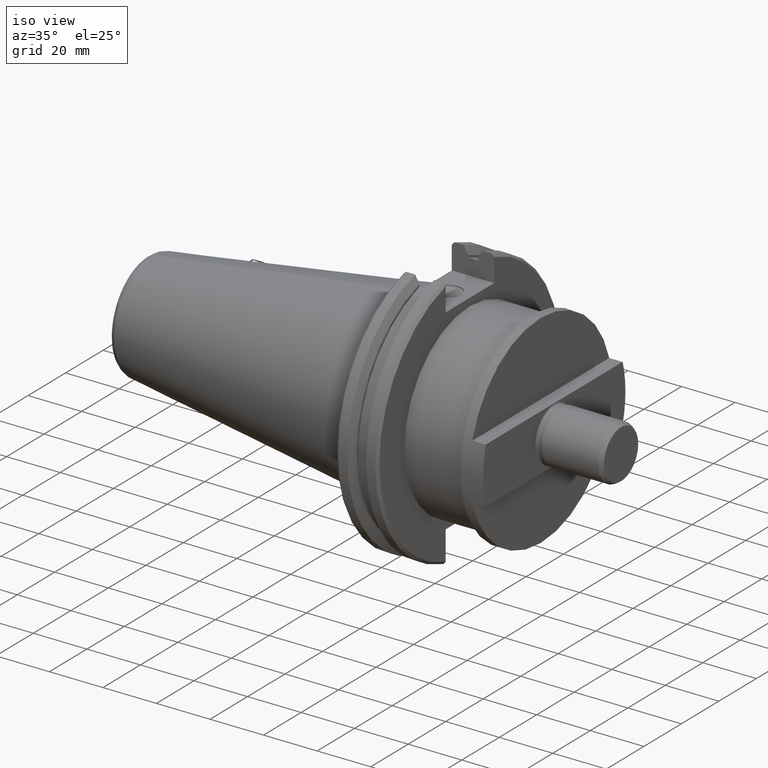
[diagram: clean part render]
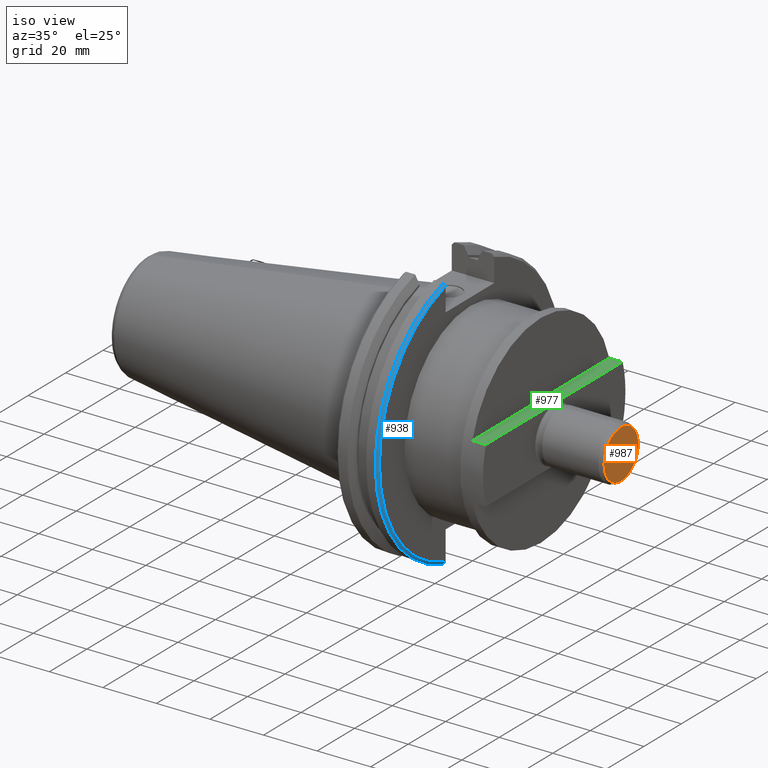
[diagram: same view with three faces highlighted in distinct colors, each labeled with its STEP entity id]
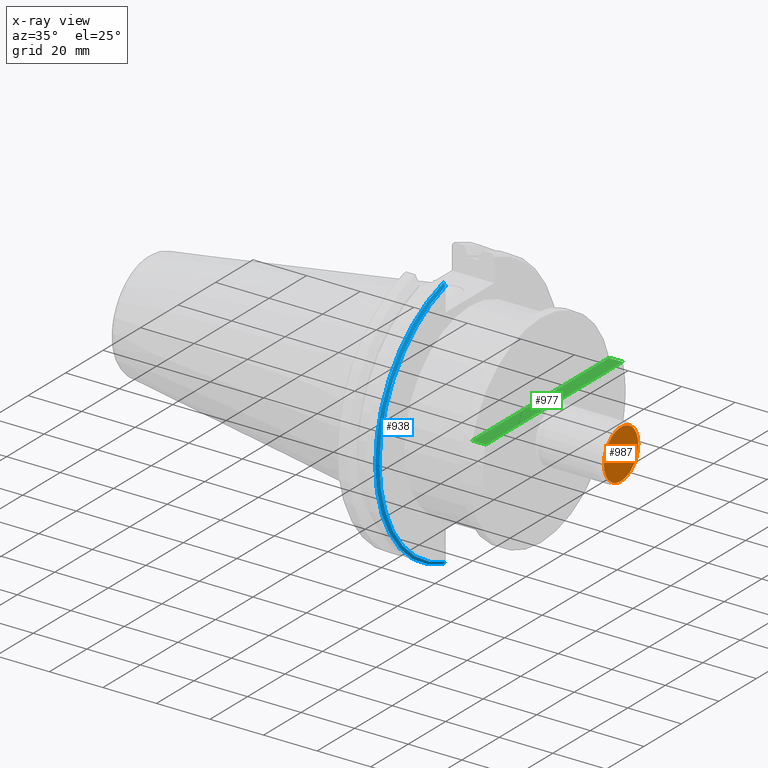
[diagram: x-ray of the same camera — body ghosted, the three highlighted faces saturated]
A machine part, iso view with three faces highlighted in distinct colors.
The next image is the same camera in x-ray (body ghosted, the three faces saturated) — at least one of them is partly hidden behind the body in this view.
Their STEP definitions:

[orange] entity #987 — the highlighted planar face has unit normal (1, 0, 0).
#115=FACE_OUTER_BOUND('',#180,.T.);
#180=EDGE_LOOP('',(#906));
#253=CIRCLE('',#1137,9.133974596216);
#477=VERTEX_POINT('',#1785);
#620=EDGE_CURVE('',#477,#477,#253,.T.);
#906=ORIENTED_EDGE('',*,*,#620,.T.);
#929=PLANE('',#1138);
#987=ADVANCED_FACE('',(#115),#929,.T.);
#1137=AXIS2_PLACEMENT_3D('',#1787,#1460,#1461);
#1138=AXIS2_PLACEMENT_3D('',#1788,#1462,#1463);
#1460=DIRECTION('center_axis',(1.,0.,0.));
#1461=DIRECTION('ref_axis',(0.,0.,-1.));
#1462=DIRECTION('center_axis',(1.,0.,0.));
#1463=DIRECTION('ref_axis',(0.,0.,-1.));
#1785=CARTESIAN_POINT('',(75.4999999999999,9.13397459621582,-1.1185892752749E-15));
#1787=CARTESIAN_POINT('Origin',(75.5,-1.084307601755E-14,0.));
#1788=CARTESIAN_POINT('Origin',(75.5,17.,0.));

[blue] entity #938 — the highlighted conical surface has half-angle 45 deg.
#45=CONICAL_SURFACE('',#1027,48.75625,0.785398163397448);
#66=FACE_OUTER_BOUND('',#124,.T.);
#124=EDGE_LOOP('',(#669,#670,#671,#672));
#181=CIRCLE('',#1009,1853.38669788736);
#186=CIRCLE('',#1016,1853.38669592496);
#191=CIRCLE('',#1026,49.2125);
#192=CIRCLE('',#1028,48.3);
#390=VERTEX_POINT('',#1481);
#391=VERTEX_POINT('',#1483);
#402=VERTEX_POINT('',#1511);
#403=VERTEX_POINT('',#1513);
#484=EDGE_CURVE('',#391,#390,#181,.T.);
#498=EDGE_CURVE('',#403,#402,#186,.T.);
#508=EDGE_CURVE('',#390,#403,#191,.T.);
#509=EDGE_CURVE('',#391,#402,#192,.T.);
#669=ORIENTED_EDGE('',*,*,#509,.F.);
#670=ORIENTED_EDGE('',*,*,#484,.T.);
#671=ORIENTED_EDGE('',*,*,#508,.T.);
#672=ORIENTED_EDGE('',*,*,#498,.T.);
#938=ADVANCED_FACE('',(#66),#45,.T.);
#1009=AXIS2_PLACEMENT_3D('',#1484,#1147,#1148);
#1016=AXIS2_PLACEMENT_3D('',#1514,#1169,#1170);
#1026=AXIS2_PLACEMENT_3D('',#1535,#1193,#1194);
#1027=AXIS2_PLACEMENT_3D('',#1536,#1195,#1196);
#1028=AXIS2_PLACEMENT_3D('',#1537,#1197,#1198);
#1147=DIRECTION('center_axis',(-0.00520910932494165,-0.999973822659977,
-0.00502186965513759));
#1148=DIRECTION('ref_axis',(0.719662100272606,-0.0072356055866809,0.694286761679218));
#1169=DIRECTION('center_axis',(-0.00520910526068431,-0.999973822700826,
0.0050218657369686));
#1170=DIRECTION('ref_axis',(0.720154442242782,-0.00723559994131297,-0.693776062870057));
#1193=DIRECTION('center_axis',(1.,0.,0.));
#1194=DIRECTION('ref_axis',(0.,-1.,0.));
#1195=DIRECTION('center_axis',(-1.,0.,0.));
#1196=DIRECTION('ref_axis',(0.,-1.,-7.22789203751574E-15));
#1197=DIRECTION('center_axis',(1.,0.,0.));
#1198=DIRECTION('ref_axis',(0.,-1.,0.));
#1481=CARTESIAN_POINT('',(18.1375,-12.954,47.47698432135));
#1483=CARTESIAN_POINT('',(19.05,-12.954,46.53046189326));
#1484=CARTESIAN_POINT('Origin',(-1315.67466361893,0.456375145513466,-1239.3048642942));
#1511=CARTESIAN_POINT('',(19.05,-12.954,-46.53046189326));
#1513=CARTESIAN_POINT('',(18.1375,-12.954,-47.47698432135));
#1514=CARTESIAN_POINT('Origin',(-1315.67466226403,0.456364668265075,1239.30486298131));
#1535=CARTESIAN_POINT('Origin',(18.1375,0.,0.));
#1536=CARTESIAN_POINT('Origin',(18.59375,0.,0.));
#1537=CARTESIAN_POINT('Origin',(19.05,0.,0.));

[green] entity #977 — the highlighted planar face has unit normal (0, 0, 1).
#105=FACE_OUTER_BOUND('',#169,.T.);
#169=EDGE_LOOP('',(#862,#863,#864,#865));
#305=LINE('',#1743,#366);
#306=LINE('',#1747,#367);
#307=LINE('',#1750,#368);
#308=LINE('',#1752,#369);
#366=VECTOR('',#1404,5.);
#367=VECTOR('',#1407,5.);
#368=VECTOR('',#1412,73.0410843293);
#369=VECTOR('',#1415,73.0410843293);
#465=VERTEX_POINT('',#1740);
#466=VERTEX_POINT('',#1742);
#467=VERTEX_POINT('',#1744);
#468=VERTEX_POINT('',#1746);
#598=EDGE_CURVE('',#465,#466,#305,.T.);
#600=EDGE_CURVE('',#467,#468,#306,.T.);
#602=EDGE_CURVE('',#467,#466,#307,.T.);
#603=EDGE_CURVE('',#465,#468,#308,.T.);
#862=ORIENTED_EDGE('',*,*,#598,.F.);
#863=ORIENTED_EDGE('',*,*,#603,.T.);
#864=ORIENTED_EDGE('',*,*,#600,.F.);
#865=ORIENTED_EDGE('',*,*,#602,.T.);
#925=PLANE('',#1117);
#977=ADVANCED_FACE('',(#105),#925,.T.);
#1117=AXIS2_PLACEMENT_3D('',#1751,#1413,#1414);
#1404=DIRECTION('',(-1.,0.,0.));
#1407=DIRECTION('',(1.,0.,0.));
#1412=DIRECTION('',(0.,-1.,0.));
#1413=DIRECTION('center_axis',(0.,0.,1.));
#1414=DIRECTION('ref_axis',(0.,-1.,0.));
#1415=DIRECTION('',(0.,1.,0.));
#1740=CARTESIAN_POINT('',(50.5,-36.52054216465,10.5));
#1742=CARTESIAN_POINT('',(45.5,-36.52054216465,10.5));
#1743=CARTESIAN_POINT('',(50.5,-36.52054216465,10.5));
#1744=CARTESIAN_POINT('',(45.5,36.52054216465,10.5));
#1746=CARTESIAN_POINT('',(50.5,36.52054216465,10.5));
#1747=CARTESIAN_POINT('',(45.5,36.52054216465,10.5));
#1750=CARTESIAN_POINT('',(45.5,36.52054216465,10.5));
#1751=CARTESIAN_POINT('Origin',(38.5,0.,10.5));
#1752=CARTESIAN_POINT('',(50.5,-36.52054216465,10.5));